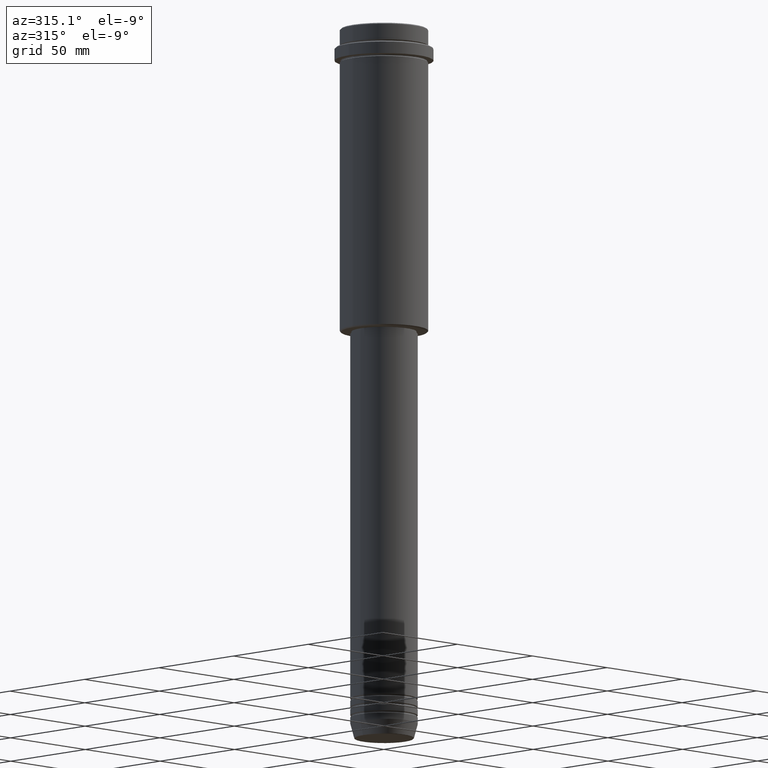
[diagram: clean part render]
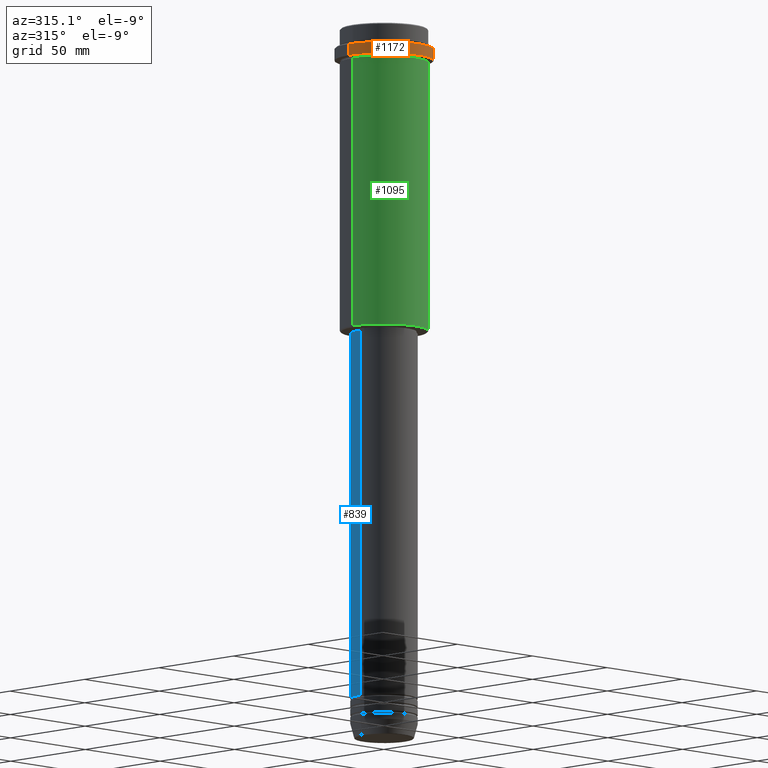
[diagram: same view with three faces highlighted in distinct colors, each labeled with its STEP entity id]
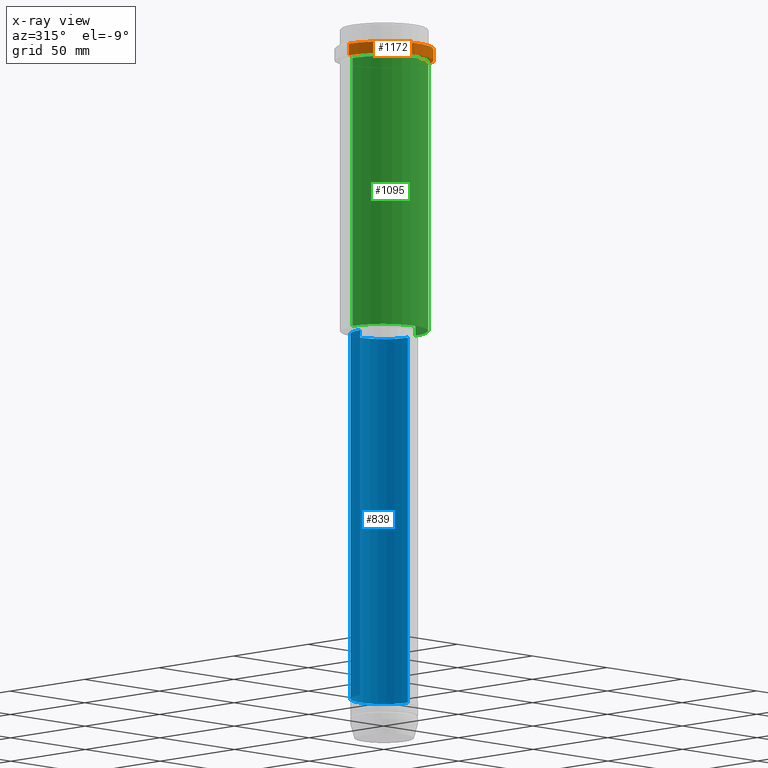
[diagram: x-ray of the same camera — body ghosted, the three highlighted faces saturated]
A machine part, auxiliary view with three faces highlighted in distinct colors.
The next image is the same camera in x-ray (body ghosted, the three faces saturated) — at least one of them is partly hidden behind the body in this view.
Their STEP definitions:

[orange] entity #1172 — the highlighted cylindrical surface (partial cylindrical patch) has radius 23.5 mm, axis along (-0, -0, 1).
#9 = EDGE_CURVE ( 'NONE', #517, #1397, #1010, .T. ) ;
#136 = FACE_OUTER_BOUND ( 'NONE', #461, .T. ) ;
#154 = DIRECTION ( 'NONE',  ( 1.000000000000000000, 0.000000000000000000, 0.000000000000000000 ) ) ;
#221 = CYLINDRICAL_SURFACE ( 'NONE', #756, 23.50000000000000000 ) ;
#260 = DIRECTION ( 'NONE',  ( -0.000000000000000000, -0.000000000000000000, 1.000000000000000000 ) ) ;
#299 = ORIENTED_EDGE ( 'NONE', *, *, #847, .T. ) ;
#315 = VERTEX_POINT ( 'NONE', #1036 ) ;
#415 = ORIENTED_EDGE ( 'NONE', *, *, #9, .T. ) ;
#461 = EDGE_LOOP ( 'NONE', ( #1303, #299, #415, #855 ) ) ;
#486 = DIRECTION ( 'NONE',  ( -0.000000000000000000, -0.000000000000000000, 1.000000000000000000 ) ) ;
#517 = VERTEX_POINT ( 'NONE', #1319 ) ;
#546 = CARTESIAN_POINT ( 'NONE',  ( 23.50000000000000000, 0.000000000000000000, -9.499999999999973355 ) ) ;
#579 = CIRCLE ( 'NONE', #1086, 23.50000000000000000 ) ;
#621 = VECTOR ( 'NONE', #260, 1000.000000000000000 ) ;
#700 = DIRECTION ( 'NONE',  ( -0.000000000000000000, -0.000000000000000000, 1.000000000000000000 ) ) ;
#756 = AXIS2_PLACEMENT_3D ( 'NONE', #879, #700, #1327 ) ;
#787 = EDGE_CURVE ( 'NONE', #1397, #315, #579, .T. ) ;
#811 = CARTESIAN_POINT ( 'NONE',  ( 23.50000000000000000, 0.000000000000000000, 0.000000000000000000 ) ) ;
#847 = EDGE_CURVE ( 'NONE', #1326, #517, #958, .T. ) ;
#855 = ORIENTED_EDGE ( 'NONE', *, *, #787, .T. ) ;
#879 = CARTESIAN_POINT ( 'NONE',  ( 0.000000000000000000, 0.000000000000000000, 0.000000000000000000 ) ) ;
#905 = LINE ( 'NONE', #1115, #937 ) ;
#926 = DIRECTION ( 'NONE',  ( 0.000000000000000000, 0.000000000000000000, -1.000000000000000000 ) ) ;
#932 = CARTESIAN_POINT ( 'NONE',  ( 0.000000000000000000, 0.000000000000000000, -9.499999999999973355 ) ) ;
#937 = VECTOR ( 'NONE', #486, 1000.000000000000000 ) ;
#955 = CARTESIAN_POINT ( 'NONE',  ( -23.50000000000000711, 2.877919977996281109E-15, -15.00000000000000178 ) ) ;
#958 = CIRCLE ( 'NONE', #1222, 23.50000000000000355 ) ;
#1010 = LINE ( 'NONE', #811, #621 ) ;
#1026 = DIRECTION ( 'NONE',  ( -0.000000000000000000, -0.000000000000000000, 1.000000000000000000 ) ) ;
#1035 = CARTESIAN_POINT ( 'NONE',  ( 0.000000000000000000, 0.000000000000000000, -15.00000000000000178 ) ) ;
#1036 = CARTESIAN_POINT ( 'NONE',  ( -23.50000000000000000, 2.877919977996280320E-15, -9.499999999999973355 ) ) ;
#1086 = AXIS2_PLACEMENT_3D ( 'NONE', #932, #926, #154 ) ;
#1115 = CARTESIAN_POINT ( 'NONE',  ( -23.50000000000000000, 2.877919977996280320E-15, 0.000000000000000000 ) ) ;
#1172 = ADVANCED_FACE ( 'NONE', ( #136 ), #221, .T. ) ;
#1188 = EDGE_CURVE ( 'NONE', #1326, #315, #905, .T. ) ;
#1222 = AXIS2_PLACEMENT_3D ( 'NONE', #1035, #1026, #1334 ) ;
#1303 = ORIENTED_EDGE ( 'NONE', *, *, #1188, .F. ) ;
#1319 = CARTESIAN_POINT ( 'NONE',  ( 23.50000000000000355, 0.000000000000000000, -15.00000000000000178 ) ) ;
#1326 = VERTEX_POINT ( 'NONE', #955 ) ;
#1327 = DIRECTION ( 'NONE',  ( 1.000000000000000000, 0.000000000000000000, 0.000000000000000000 ) ) ;
#1334 = DIRECTION ( 'NONE',  ( 1.000000000000000000, 0.000000000000000000, 0.000000000000000000 ) ) ;
#1397 = VERTEX_POINT ( 'NONE', #546 ) ;

[blue] entity #839 — the highlighted cylindrical surface (edge-blend (fillet) strip) has radius 16 mm, axis along (-0, -0, 1).
#29 = ORIENTED_EDGE ( 'NONE', *, *, #1324, .T. ) ;
#60 = CIRCLE ( 'NONE', #1200, 16.00000000000000000 ) ;
#86 = AXIS2_PLACEMENT_3D ( 'NONE', #773, #458, #1196 ) ;
#168 = VECTOR ( 'NONE', #325, 1000.000000000000000 ) ;
#173 = CYLINDRICAL_SURFACE ( 'NONE', #1197, 16.00000000000000000 ) ;
#178 = LINE ( 'NONE', #618, #168 ) ;
#200 = DIRECTION ( 'NONE',  ( -0.000000000000000000, -0.000000000000000000, 1.000000000000000000 ) ) ;
#209 = CIRCLE ( 'NONE', #86, 16.00000000000000355 ) ;
#226 = CARTESIAN_POINT ( 'NONE',  ( 16.00000000000000000, 0.000000000000000000, 0.000000000000000000 ) ) ;
#268 = CARTESIAN_POINT ( 'NONE',  ( 0.000000000000000000, 0.000000000000000000, 0.000000000000000000 ) ) ;
#277 = EDGE_LOOP ( 'NONE', ( #377, #29, #1205, #408 ) ) ;
#325 = DIRECTION ( 'NONE',  ( -0.000000000000000000, -0.000000000000000000, 1.000000000000000000 ) ) ;
#377 = ORIENTED_EDGE ( 'NONE', *, *, #1343, .T. ) ;
#408 = ORIENTED_EDGE ( 'NONE', *, *, #767, .F. ) ;
#458 = DIRECTION ( 'NONE',  ( -0.000000000000000000, -0.000000000000000000, 1.000000000000000000 ) ) ;
#474 = LINE ( 'NONE', #226, #733 ) ;
#489 = DIRECTION ( 'NONE',  ( -0.000000000000000000, -0.000000000000000000, 1.000000000000000000 ) ) ;
#551 = CARTESIAN_POINT ( 'NONE',  ( -16.00000000000000000, 1.959434878635765131E-15, -320.9999999999998863 ) ) ;
#575 = CARTESIAN_POINT ( 'NONE',  ( 16.00000000000000000, 0.000000000000000000, -320.9999999999998863 ) ) ;
#596 = VERTEX_POINT ( 'NONE', #551 ) ;
#613 = DIRECTION ( 'NONE',  ( 1.000000000000000000, 0.000000000000000000, 0.000000000000000000 ) ) ;
#618 = CARTESIAN_POINT ( 'NONE',  ( -16.00000000000000000, 1.959434878635765131E-15, 0.000000000000000000 ) ) ;
#653 = CARTESIAN_POINT ( 'NONE',  ( 0.000000000000000000, 0.000000000000000000, -320.9999999999998863 ) ) ;
#733 = VECTOR ( 'NONE', #489, 1000.000000000000000 ) ;
#767 = EDGE_CURVE ( 'NONE', #1063, #1039, #474, .T. ) ;
#773 = CARTESIAN_POINT ( 'NONE',  ( 0.000000000000000000, 0.000000000000000000, -145.9999999999999432 ) ) ;
#839 = ADVANCED_FACE ( 'NONE', ( #1130 ), #173, .T. ) ;
#925 = CARTESIAN_POINT ( 'NONE',  ( -16.00000000000000355, 1.959434878635765526E-15, -145.9999999999999432 ) ) ;
#941 = DIRECTION ( 'NONE',  ( -0.000000000000000000, -0.000000000000000000, 1.000000000000000000 ) ) ;
#1039 = VERTEX_POINT ( 'NONE', #1074 ) ;
#1063 = VERTEX_POINT ( 'NONE', #575 ) ;
#1074 = CARTESIAN_POINT ( 'NONE',  ( 16.00000000000000355, 0.000000000000000000, -145.9999999999999432 ) ) ;
#1104 = EDGE_CURVE ( 'NONE', #1039, #1238, #209, .T. ) ;
#1130 = FACE_OUTER_BOUND ( 'NONE', #277, .T. ) ;
#1196 = DIRECTION ( 'NONE',  ( 1.000000000000000000, 0.000000000000000000, 0.000000000000000000 ) ) ;
#1197 = AXIS2_PLACEMENT_3D ( 'NONE', #268, #941, #613 ) ;
#1200 = AXIS2_PLACEMENT_3D ( 'NONE', #653, #200, #1398 ) ;
#1205 = ORIENTED_EDGE ( 'NONE', *, *, #1104, .F. ) ;
#1238 = VERTEX_POINT ( 'NONE', #925 ) ;
#1324 = EDGE_CURVE ( 'NONE', #596, #1238, #178, .T. ) ;
#1343 = EDGE_CURVE ( 'NONE', #1063, #596, #60, .T. ) ;
#1398 = DIRECTION ( 'NONE',  ( 1.000000000000000000, 0.000000000000000000, 0.000000000000000000 ) ) ;

[green] entity #1095 — the highlighted cylindrical surface (partial cylindrical patch) has radius 21 mm, axis along (-0, -0, 1).
#75 = VERTEX_POINT ( 'NONE', #668 ) ;
#181 = DIRECTION ( 'NONE',  ( -0.000000000000000000, -0.000000000000000000, 1.000000000000000000 ) ) ;
#192 = VERTEX_POINT ( 'NONE', #543 ) ;
#244 = DIRECTION ( 'NONE',  ( 1.000000000000000000, 0.000000000000000000, 0.000000000000000000 ) ) ;
#254 = AXIS2_PLACEMENT_3D ( 'NONE', #658, #1085, #244 ) ;
#308 = ORIENTED_EDGE ( 'NONE', *, *, #866, .T. ) ;
#365 = CARTESIAN_POINT ( 'NONE',  ( 0.000000000000000000, 0.000000000000000000, -144.5000000000000568 ) ) ;
#399 = DIRECTION ( 'NONE',  ( 1.000000000000000000, 0.000000000000000000, 0.000000000000000000 ) ) ;
#403 = EDGE_CURVE ( 'NONE', #75, #617, #1406, .T. ) ;
#431 = VECTOR ( 'NONE', #508, 1000.000000000000000 ) ;
#449 = CYLINDRICAL_SURFACE ( 'NONE', #254, 20.99999999999999645 ) ;
#508 = DIRECTION ( 'NONE',  ( -0.000000000000000000, -0.000000000000000000, 1.000000000000000000 ) ) ;
#538 = CIRCLE ( 'NONE', #737, 20.99999999999999645 ) ;
#543 = CARTESIAN_POINT ( 'NONE',  ( 20.99999999999999645, 0.000000000000000000, -144.5000000000000568 ) ) ;
#566 = ORIENTED_EDGE ( 'NONE', *, *, #785, .F. ) ;
#599 = DIRECTION ( 'NONE',  ( -0.000000000000000000, -0.000000000000000000, 1.000000000000000000 ) ) ;
#617 = VERTEX_POINT ( 'NONE', #1113 ) ;
#636 = CARTESIAN_POINT ( 'NONE',  ( -20.99999999999999645, 2.571758278209441267E-15, -144.5000000000000568 ) ) ;
#658 = CARTESIAN_POINT ( 'NONE',  ( 0.000000000000000000, 0.000000000000000000, 0.000000000000000000 ) ) ;
#664 = ORIENTED_EDGE ( 'NONE', *, *, #1301, .T. ) ;
#668 = CARTESIAN_POINT ( 'NONE',  ( -20.99999999999999645, 2.571758278209441267E-15, -16.00000000000000355 ) ) ;
#676 = EDGE_LOOP ( 'NONE', ( #566, #664, #308, #1369 ) ) ;
#702 = CARTESIAN_POINT ( 'NONE',  ( 20.99999999999999645, 0.000000000000000000, 0.000000000000000000 ) ) ;
#708 = LINE ( 'NONE', #834, #431 ) ;
#712 = VECTOR ( 'NONE', #599, 1000.000000000000000 ) ;
#737 = AXIS2_PLACEMENT_3D ( 'NONE', #365, #1349, #1121 ) ;
#785 = EDGE_CURVE ( 'NONE', #967, #75, #708, .T. ) ;
#834 = CARTESIAN_POINT ( 'NONE',  ( -20.99999999999999645, 2.571758278209441267E-15, 0.000000000000000000 ) ) ;
#866 = EDGE_CURVE ( 'NONE', #192, #617, #1351, .T. ) ;
#913 = AXIS2_PLACEMENT_3D ( 'NONE', #1019, #181, #399 ) ;
#967 = VERTEX_POINT ( 'NONE', #636 ) ;
#1019 = CARTESIAN_POINT ( 'NONE',  ( 0.000000000000000000, 0.000000000000000000, -16.00000000000000355 ) ) ;
#1085 = DIRECTION ( 'NONE',  ( -0.000000000000000000, -0.000000000000000000, 1.000000000000000000 ) ) ;
#1092 = FACE_OUTER_BOUND ( 'NONE', #676, .T. ) ;
#1095 = ADVANCED_FACE ( 'NONE', ( #1092 ), #449, .T. ) ;
#1113 = CARTESIAN_POINT ( 'NONE',  ( 20.99999999999999645, 0.000000000000000000, -16.00000000000000355 ) ) ;
#1121 = DIRECTION ( 'NONE',  ( -1.000000000000000000, 0.000000000000000000, 0.000000000000000000 ) ) ;
#1301 = EDGE_CURVE ( 'NONE', #967, #192, #538, .T. ) ;
#1349 = DIRECTION ( 'NONE',  ( -0.000000000000000000, -0.000000000000000000, 1.000000000000000000 ) ) ;
#1351 = LINE ( 'NONE', #702, #712 ) ;
#1369 = ORIENTED_EDGE ( 'NONE', *, *, #403, .F. ) ;
#1406 = CIRCLE ( 'NONE', #913, 20.99999999999999645 ) ;